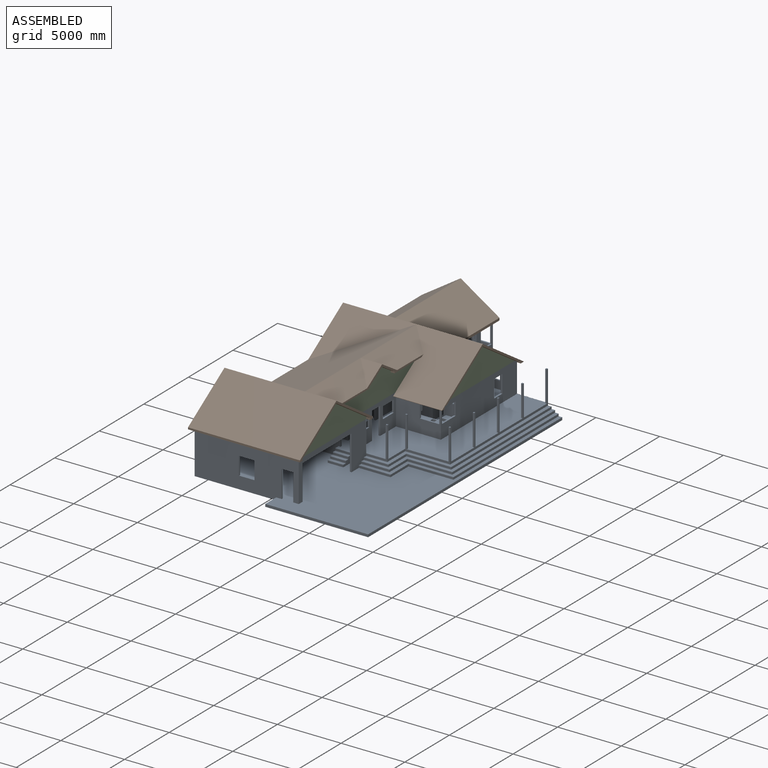
[diagram: assembled view]
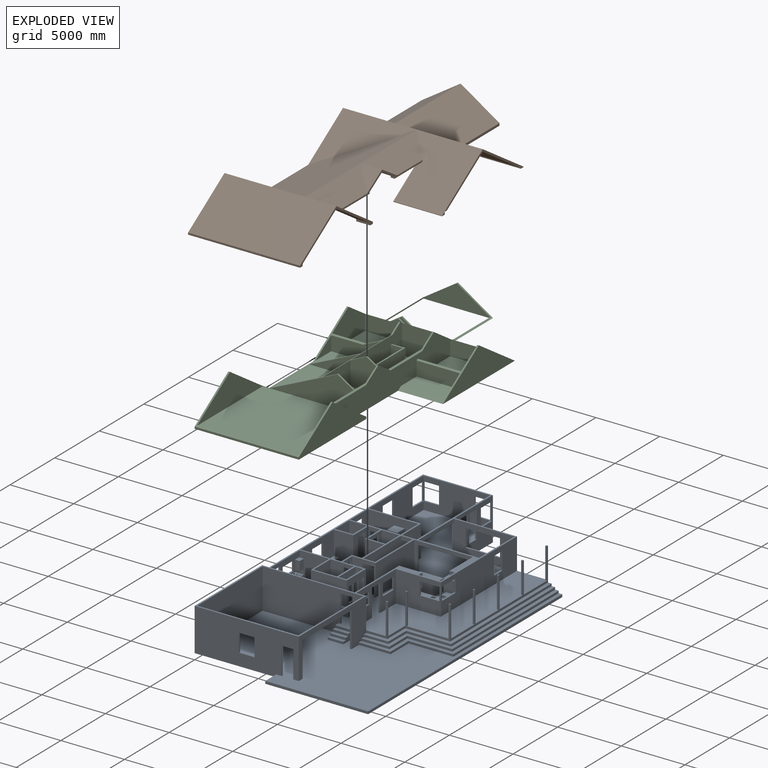
[diagram: exploded view]
GUIDED TOUR — MATED ASSEMBLY (Onshape document f71e9f13c0f35e55d997de1e, AutoMate assembly f71e9f13c0f35e55d997de1e_c3f4e6543fdfa51a9d2d7224_18e60f7df534cf2a55e49c2d_default)

This assembly has 3 components, labeled P0..P2 below (a component is one placed occurrence of a part; the same part can appear more than once), held together by 2 mates. A mate is a constraint between two components; its type names the relative motion it leaves free:
  FASTENED — locks the two components together rigidly (no relative motion).
Axis/direction vectors are unit vectors and 'through' points are millimeter coordinates, both in the assembly's world frame.

MATES
  1. FASTENED "Fastened 1": P1 <-> P2, direction (0.000, 0.000, 1.000) through (10922.00, 16281.40, 5984.88) mm
  2. FASTENED "Fastened-Floor 2": P2 <-> P0, direction (0.000, 0.000, 1.000) through (0.00, 0.00, 3352.80) mm

ASSEMBLY ORDER
  1. P2 — the base component [order heuristic]
  2. P1 — core [order heuristic]
  3. P0 [order verified]
Order-tag legend:
  [order verified] — this step's position reverses a verified removal order: the component was checked to insert without passing through the ones already placed.
  [order heuristic] — the first 2 components form the assembly's core: parts whose collision-free extraction could not be verified, listed in mate-graph order.

Of the 3 components, 1 carries the full construction recipe — the FeatureScript program that regenerates the part's solid from scratch; the rest are supplied as boundary geometry only.
Each toured component is shown spotlighted twice — in the assembled view, then in the exploded view, where a leader line traces a displaced component back to its assembled socket (saturated green if recipe-attached, orange if geometry-only; every other component desaturated gray) — followed by its recipe or geometry summary and the mates that hold it.
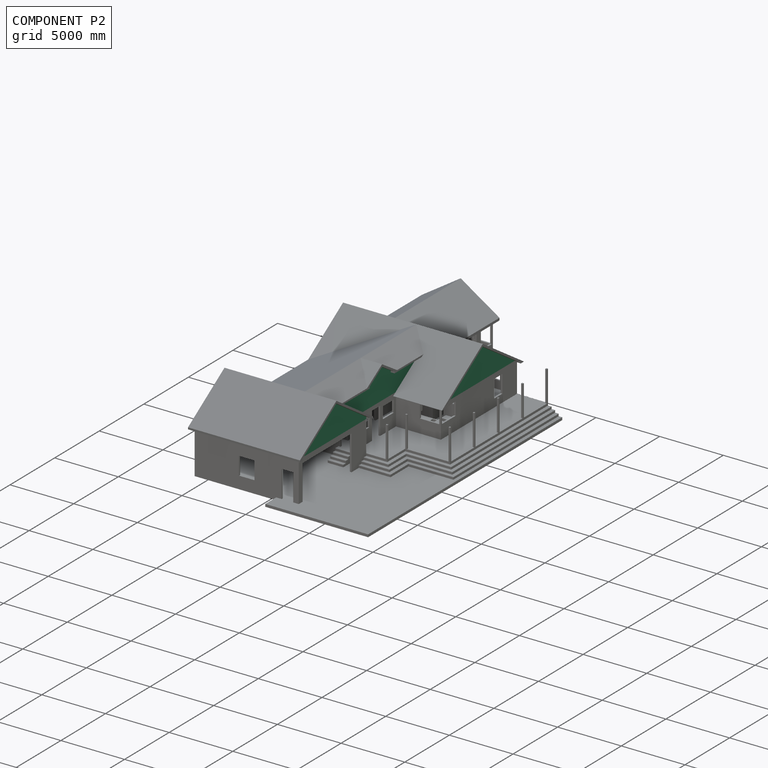
[diagram: component P2 — assembled]
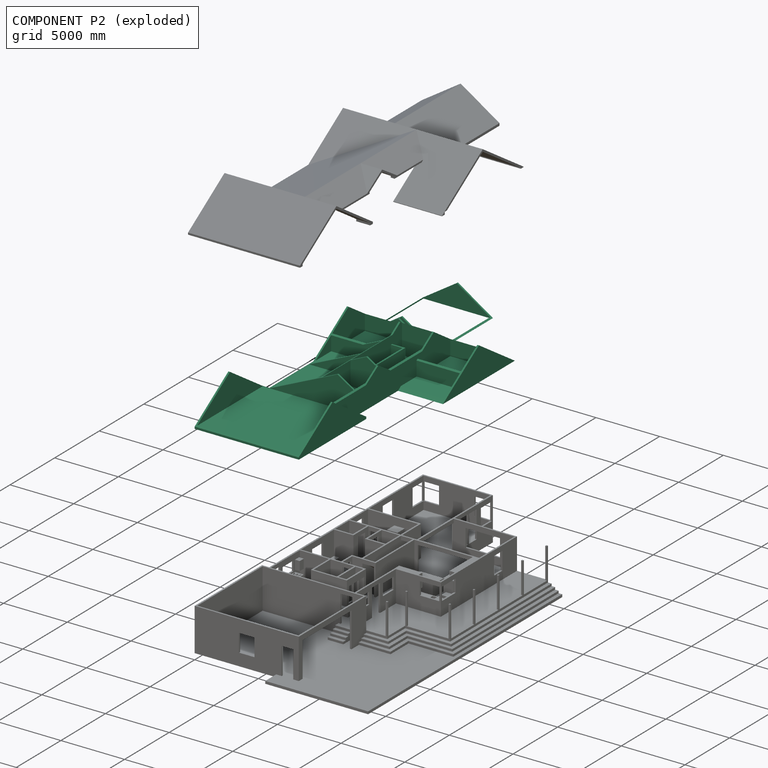
[diagram: component P2 — exploded]
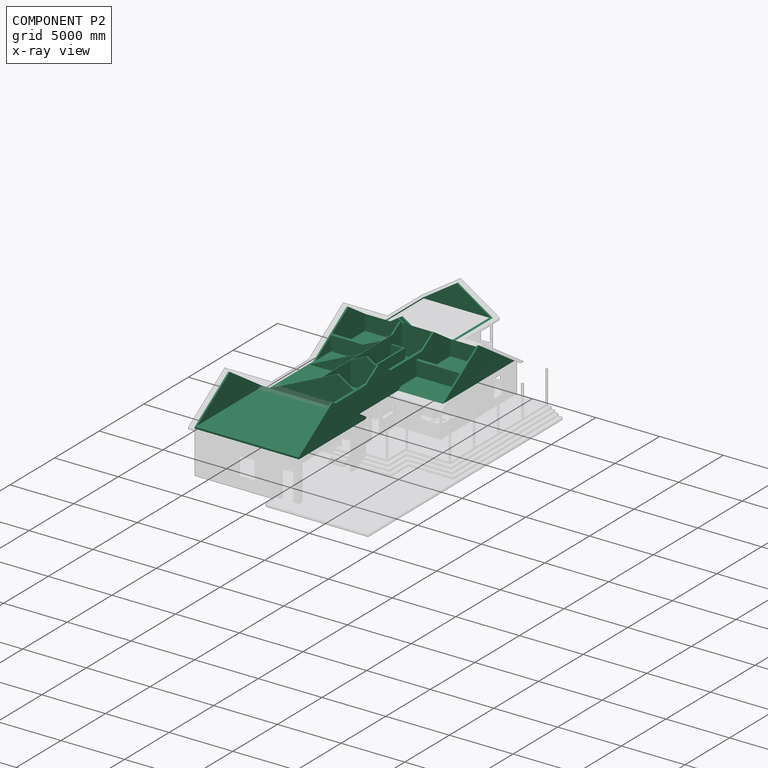
[diagram: component P2 — x-ray view]
COMPONENT P2 — recipe-attached (CADFS 00163515, mesh-verified: the recipe's output STEP matches this component's geometry to below the mesh-comparison resolution (tessellation chordal tolerance ~40.9 mm)).
Held by: FASTENED mate "Fastened 1" to P1; FASTENED mate "Fastened-Floor 2" to P0.
Construction recipe (FeatureScript — the CAD program that rebuilds this solid; sketch coordinates are in the units given by the * unit suffixes, e.g. mm):

FeatureScript 2581;
import(path : "onshape/std/geometry.fs", version : "2581.0");
import(path : "onshape/std/common.fs", version : "2581.0");
const mm = millimeter;
const VERTEX = EntityType.VERTEX;
const EDGE = EntityType.EDGE;
const FACE = EntityType.FACE;
const BODY = EntityType.BODY;
function v(x, y){return vector(x, y);}
function OD(order){return orderDisambiguation(order);}
function OSD(set){return originalSetDisambiguation(set);}
function TD(topology){return topologyDisambiguation(topology);}
function TDD(query){return trueDependencyDisambiguation(query);}
function sQuery(a, b, c) {return sketchEntityQuery(a, b, c);}

annotation { "Feature Type Name" : "Feature", "Feature Type Description" : "" }
export const myFeature = defineFeature(function(context is Context, id is Id, definition is map)
    precondition{}
    {
        {
            var Q0;
            Q0=qCreatedBy(makeId("Top.planeOp"),FACE);
            var sketch = newSketch(context, id + "F0", { "sketchPlane" : qUnion([Q0])});
            skLineSegment(sketch, "E0", {"start": v(0, 0) * mm, "end": v(8178.8, 0) * mm});
            skLineSegment(sketch, "E1", {"start": v(0, 0) * mm, "end": v(0, 7569.2) * mm});
            skLineSegment(sketch, "E2", {"start": v(0, 7569.2) * mm, "end": v(558.8, 7569.2) * mm});
            skLineSegment(sketch, "E3", {"start": v(558.8, 7569.2) * mm, "end": v(558.8, 24815.8) * mm});
            skLineSegment(sketch, "E4", {"start": v(558.8, 24815.8) * mm, "end": v(6045.2, 24815.8) * mm});
            skLineSegment(sketch, "E5", {"start": v(6045.2, 24815.8) * mm, "end": v(6045.2, 20548.6) * mm});
            skLineSegment(sketch, "E6", {"start": v(6045.2, 20548.6) * mm, "end": v(10922, 20548.6) * mm});
            skLineSegment(sketch, "E7", {"start": v(10922, 20548.6) * mm, "end": v(10922, 12014.2) * mm});
            skLineSegment(sketch, "E8", {"start": v(10922, 12014.2) * mm, "end": v(7391.4, 12014.2) * mm});
            skLineSegment(sketch, "E9", {"start": v(7391.4, 12014.2) * mm, "end": v(7391.4, 7569.2) * mm});
            skLineSegment(sketch, "E10", {"start": v(7391.4, 7569.2) * mm, "end": v(8178.8, 7569.2) * mm});
            skLineSegment(sketch, "E11", {"start": v(8178.8, 7569.2) * mm, "end": v(8178.8, 0) * mm});
            skSolve(sketch);
        }
        {
            var Q0;
            Q0 = qSketchRegion(id + "F0", true);
            extrude(context, id + "F1", {"entities" : qUnion([Q0]), "depth" : 2632.07 * mm});
        }
        {
            var Q0;
            Q0=makeQuery(id+"F1.opExtrude","SWEPT_FACE",FACE,{"disambiguationData":[OSD([sQuery(id+"F0.wireOp",EDGE,"E7")])]});
            var sketch = newSketch(context, id + "F2", { "sketchPlane" : qUnion([Q0])});
            skLineSegment(sketch, "E12", {"start": v(16281.4, 2632.08) * mm, "end": v(16281.4, 219.08) * mm, "construction": true});
            skLineSegment(sketch, "E13", {"start": v(14452.6, 219.08) * mm, "end": v(18110.2, 219.08) * mm, "construction": true});
            skLineSegment(sketch, "E14", {"start": v(14452.6, 219.08) * mm, "end": v(14452.6, 1438.28) * mm, "construction": true});
            skLineSegment(sketch, "E15", {"start": v(16281.4, 2632.08) * mm, "end": v(12249.29, 0) * mm});
            skLineSegment(sketch, "E16", {"start": v(12249.29, 0) * mm, "end": v(12014.2, 0) * mm});
            skLineSegment(sketch, "E17", {"start": v(12014.2, 0) * mm, "end": v(12014.2, 2632.08) * mm});
            skLineSegment(sketch, "E18", {"start": v(12014.2, 2632.08) * mm, "end": v(16281.4, 2632.08) * mm});
            skLineSegment(sketch, "E19.MirrorCS", {"start": v(16281.4, 2632.08) * mm, "end": v(20313.51, 0) * mm});
            skLineSegment(sketch, "E20.MirrorCS", {"start": v(20313.51, 0) * mm, "end": v(20548.6, 0) * mm});
            skLineSegment(sketch, "E21.MirrorCS", {"start": v(20548.6, 0) * mm, "end": v(20548.6, 2632.08) * mm});
            skLineSegment(sketch, "E22.MirrorCS", {"start": v(20548.6, 2632.08) * mm, "end": v(16281.4, 2632.08) * mm});
            skLineSegment(sketch, "E23", {"start": v(3784.6, 2632.08) * mm, "end": v(3784.6, 219.08) * mm, "construction": true});
            skLineSegment(sketch, "E24", {"start": v(1955.8, 219.08) * mm, "end": v(5613.4, 219.08) * mm, "construction": true});
            skLineSegment(sketch, "E25", {"start": v(1955.8, 219.08) * mm, "end": v(1955.8, 1438.28) * mm, "construction": true});
            skLineSegment(sketch, "E26", {"start": v(3784.6, 2632.08) * mm, "end": v(0, 161.57) * mm});
            skLineSegment(sketch, "E27", {"start": v(0, 161.57) * mm, "end": v(0, 2632.08) * mm});
            skLineSegment(sketch, "E28", {"start": v(0, 2632.08) * mm, "end": v(3784.6, 2632.08) * mm});
            skLineSegment(sketch, "E29.MirrorCS", {"start": v(3784.6, 2632.08) * mm, "end": v(7569.2, 161.57) * mm});
            skLineSegment(sketch, "E30.MirrorCS", {"start": v(7569.2, 161.57) * mm, "end": v(7569.2, 2632.08) * mm});
            skLineSegment(sketch, "E31.MirrorCS", {"start": v(7569.2, 2632.08) * mm, "end": v(3784.6, 2632.08) * mm});
            skSolve(sketch);
        }
        {
            var Q0;
            Q0 = qSketchRegion(id + "F2", true);
            var Q1;
            Q1=makeQuery(id+"F1.opExtrude","SWEPT_FACE",FACE,{"disambiguationData":[OSD([sQuery(id+"F0.wireOp",EDGE,"E1")])]});
            extrude(context, id + "F3", {"entities" : qUnion([Q0]), "operationType" : NewBodyOperationType.REMOVE, "endBound" : BoundingType.UP_TO_SURFACE, "oppositeDirection" : true, "endBoundEntityFace" : qUnion([Q1]), "depth" : 25.4 * mm});
        }
        {
            var Q0;
            Q0=makeQuery(id+"F3.boolean.opBoolean","COPY",FACE,{"derivedFrom":makeQuery(id+"F3.opExtrude","SWEPT_FACE",FACE,{"disambiguationData":[OSD([sQuery(id+"F2.wireOp",EDGE,"E30.MirrorCS")])]})});
            var sketch = newSketch(context, id + "F4", { "sketchPlane" : qUnion([Q0])});
            skLineSegment(sketch, "E32", {"start": v(6010.27, 2632.07) * mm, "end": v(6010.27, 219.07) * mm, "construction": true});
            skLineSegment(sketch, "E33", {"start": v(4756.15, 219.07) * mm, "end": v(7264.4, 219.07) * mm, "construction": true});
            skLineSegment(sketch, "E34", {"start": v(4756.15, 219.07) * mm, "end": v(4756.15, 1844.67) * mm, "construction": true});
            skLineSegment(sketch, "E35", {"start": v(6010.27, 2632.07) * mm, "end": v(558.8, 161.57) * mm});
            skLineSegment(sketch, "E36", {"start": v(558.8, 161.57) * mm, "end": v(558.8, 2632.07) * mm});
            skLineSegment(sketch, "E37", {"start": v(558.8, 2632.07) * mm, "end": v(6010.27, 2632.07) * mm});
            skLineSegment(sketch, "E38.MirrorCS", {"start": v(7264.4, 219.07) * mm, "end": v(7264.4, 1844.67) * mm, "construction": true});
            skLineSegment(sketch, "E39", {"start": v(6010.27, 2632.07) * mm, "end": v(7391.4, 1764.94) * mm});
            skLineSegment(sketch, "E40", {"start": v(7391.4, 1764.94) * mm, "end": v(7391.4, 2632.07) * mm});
            skLineSegment(sketch, "E41", {"start": v(7391.4, 2632.07) * mm, "end": v(6010.27, 2632.07) * mm});
            skSolve(sketch);
        }
        {
            var Q0;
            Q0 = qSketchRegion(id + "F4", true);
            extrude(context, id + "F5", {"entities" : qUnion([Q0]), "operationType" : NewBodyOperationType.REMOVE, "endBound" : BoundingType.UP_TO_NEXT, "oppositeDirection" : true, "depth" : 25.4 * mm});
        }
        {
            var Q0;
            Q0=makeQuery(id+"F3.boolean.opBoolean","COPY",FACE,{"derivedFrom":makeQuery(id+"F3.opExtrude","SWEPT_FACE",FACE,{"disambiguationData":[OSD([sQuery(id+"F2.wireOp",EDGE,"E30.MirrorCS")])]})});
            var sketch = newSketch(context, id + "F6", { "sketchPlane" : qUnion([Q0])});
            skLineSegment(sketch, "E42", {"start": v(558.8, 161.57) * mm, "end": v(6010.27, 2632.08) * mm});
            skLineSegment(sketch, "E43", {"start": v(6010.27, 2632.08) * mm, "end": v(7391.4, 1764.94) * mm});
            skLineSegment(sketch, "E44", {"start": v(7391.4, 1764.94) * mm, "end": v(7391.4, 161.57) * mm});
            skLineSegment(sketch, "E45", {"start": v(7391.4, 161.57) * mm, "end": v(558.8, 161.57) * mm});
            skSolve(sketch);
        }
        {
            var Q0;
            Q0 = qSketchRegion(id + "F6", true);
            extrude(context, id + "F7", {"entities" : qUnion([Q0]), "operationType" : NewBodyOperationType.ADD, "endBound" : BoundingType.UP_TO_NEXT, "depth" : 25.4 * mm});
        }
        {
            var Q0;
            Q0=makeQuery(id+"F3.boolean.opBoolean","COPY",FACE,{"derivedFrom":makeQuery(id+"F3.opExtrude","SWEPT_FACE",FACE,{"disambiguationData":[OSD([sQuery(id+"F2.wireOp",EDGE,"E17")])]})});
            var sketch = newSketch(context, id + "F8", { "sketchPlane" : qUnion([Q0])});
            skLineSegment(sketch, "E46", {"start": v(-6010.27, 2632.08) * mm, "end": v(-7391.4, 1764.94) * mm});
            skLineSegment(sketch, "E47", {"start": v(-7391.4, 1764.94) * mm, "end": v(-7391.4, 0) * mm});
            skLineSegment(sketch, "E48", {"start": v(-7391.4, 0) * mm, "end": v(-558.8, 0) * mm});
            skLineSegment(sketch, "E49", {"start": v(-558.8, 161.57) * mm, "end": v(-6010.27, 2632.08) * mm});
            skLineSegment(sketch, "E50", {"start": v(-558.8, 161.57) * mm, "end": v(-558.8, 0) * mm});
            skSolve(sketch);
        }
        {
            var Q0;
            Q0 = qSketchRegion(id + "F8", true);
            extrude(context, id + "F9", {"entities" : qUnion([Q0]), "operationType" : NewBodyOperationType.ADD, "endBound" : BoundingType.UP_TO_NEXT, "depth" : 25.4 * mm});
        }
        {
            var Q0;
            Q0=makeQuery(id+"F1.opExtrude","SWEPT_FACE",FACE,{"disambiguationData":[OSD([sQuery(id+"F0.wireOp",EDGE,"E4")])]});
            var sketch = newSketch(context, id + "F10", { "sketchPlane" : qUnion([Q0])});
            skLineSegment(sketch, "E51", {"start": v(-3302, 2632.08) * mm, "end": v(-3302, 0) * mm, "construction": true});
            skPoint(sketch, "E52", {"position": v(-3302, 219.07) * mm});
            skPoint(sketch, "E53", {"position": v(-3302, 1793.88) * mm});
            skLineSegment(sketch, "E54", {"start": v(-5130.8, 219.07) * mm, "end": v(-1473.2, 219.07) * mm, "construction": true});
            skLineSegment(sketch, "E55", {"start": v(-5130.8, 219.08) * mm, "end": v(-5130.8, 1438.27) * mm, "construction": true});
            skLineSegment(sketch, "E56", {"start": v(-5130.8, 1438.27) * mm, "end": v(-3302, 2632.08) * mm, "construction": true});
            skLineSegment(sketch, "E57", {"start": v(-3302, 1793.88) * mm, "end": v(-6045.2, 3.17) * mm});
            skLineSegment(sketch, "E58", {"start": v(-6045.2, 3.17) * mm, "end": v(-6045.2, 2632.08) * mm});
            skLineSegment(sketch, "E59", {"start": v(-6045.2, 2632.08) * mm, "end": v(-3302, 2632.08) * mm});
            skLineSegment(sketch, "E60.MirrorCS", {"start": v(-3302, 1793.88) * mm, "end": v(-558.8, 3.17) * mm});
            skLineSegment(sketch, "E61.MirrorCS", {"start": v(-558.8, 3.17) * mm, "end": v(-558.8, 2632.08) * mm});
            skLineSegment(sketch, "E62.MirrorCS", {"start": v(-558.8, 2632.08) * mm, "end": v(-3302, 2632.08) * mm});
            skSolve(sketch);
        }
        {
            var Q0;
            Q0 = qSketchRegion(id + "F10", true);
            extrude(context, id + "F11", {"entities" : qUnion([Q0]), "operationType" : NewBodyOperationType.REMOVE, "endBound" : BoundingType.UP_TO_NEXT, "oppositeDirection" : true, "depth" : 25.4 * mm});
        }
        {
            var Q0;
            Q0=makeQuery(id+"F3.boolean.opBoolean","COPY",FACE,{"derivedFrom":makeQuery(id+"F3.opExtrude","SWEPT_FACE",FACE,{"disambiguationData":[OSD([sQuery(id+"F2.wireOp",EDGE,"E21.MirrorCS")])]})});
            var sketch = newSketch(context, id + "F12", { "sketchPlane" : qUnion([Q0])});
            skLineSegment(sketch, "E63", {"start": v(3302, 1793.88) * mm, "end": v(558.8, 3.17) * mm});
            skLineSegment(sketch, "E64", {"start": v(558.8, 3.17) * mm, "end": v(558.8, 0) * mm});
            skLineSegment(sketch, "E65", {"start": v(558.8, 0) * mm, "end": v(6045.2, 0) * mm});
            skLineSegment(sketch, "E66", {"start": v(6045.2, 0) * mm, "end": v(6045.2, 3.17) * mm});
            skLineSegment(sketch, "E67", {"start": v(6045.2, 3.17) * mm, "end": v(3302, 1793.88) * mm});
            skSolve(sketch);
        }
        {
            var Q0;
            Q0 = qSketchRegion(id + "F12", true);
            extrude(context, id + "F13", {"entities" : qUnion([Q0]), "operationType" : NewBodyOperationType.ADD, "endBound" : BoundingType.UP_TO_NEXT, "depth" : 25.4 * mm});
        }
        {
            var Q0;
            Q0=makeQuery(id+"F9.boolean.opBoolean","MERGE",FACE,{"derivedFrom":[makeQuery(id+"F7.boolean.opBoolean","MERGE",FACE,{"derivedFrom":[makeQuery(id+"F1.opExtrude","SWEPT_FACE",FACE,{"disambiguationData":[OSD([sQuery(id+"F0.wireOp",EDGE,"E9")])]}),makeQuery(id+"F7.opExtrude","SWEPT_FACE",FACE,{"disambiguationData":[OSD([sQuery(id+"F6.wireOp",EDGE,"E44")])]})]}),makeQuery(id+"F9.opExtrude","SWEPT_FACE",FACE,{"disambiguationData":[OSD([sQuery(id+"F8.wireOp",EDGE,"E47")])]})]});
            var sketch = newSketch(context, id + "F14", { "sketchPlane" : qUnion([Q0])});
            skLineSegment(sketch, "E68", {"start": v(3784.6, 2632.08) * mm, "end": v(16281.4, 2632.08) * mm, "construction": true});
            skLineSegment(sketch, "E69", {"start": v(10033, 2632.08) * mm, "end": v(10033, 0) * mm, "construction": true});
            skLineSegment(sketch, "E70", {"start": v(8778.88, 219.08) * mm, "end": v(11287.13, 219.08) * mm, "construction": true});
            skPoint(sketch, "E71", {"position": v(10033, 219.08) * mm});
            skLineSegment(sketch, "E72", {"start": v(8778.88, 219.08) * mm, "end": v(8778.88, 1844.68) * mm, "construction": true});
            skLineSegment(sketch, "E73", {"start": v(10033, 2632.07) * mm, "end": v(8651.87, 1764.94) * mm});
            skLineSegment(sketch, "E74.MirrorCS", {"start": v(10033, 2632.07) * mm, "end": v(11414.13, 1764.94) * mm});
            skLineSegment(sketch, "E75", {"start": v(8651.87, 1764.94) * mm, "end": v(11414.13, 1764.94) * mm});
            skSolve(sketch);
        }
        {
            var Q0;
            Q0 = qSketchRegion(id + "F14", true);
            extrude(context, id + "F15", {"entities" : qUnion([Q0]), "operationType" : NewBodyOperationType.ADD, "endBound" : BoundingType.UP_TO_NEXT, "oppositeDirection" : true, "depth" : 25.4 * mm});
        }
        {
            var Q0;
            Q0=qCreatedBy(makeId("Top.planeOp"),FACE);
            cPlane(context, id + "F16", {"entities" : qUnion([Q0]), "cplaneType" : CPlaneType.OFFSET, "offset" : 2632.07 * mm, "width" : 152.4 * mm, "height" : 152.4 * mm});
        }
        {
            var Q0;
            Q0=qCreatedBy(id+"F16.planeOp",FACE);
            var sketch = newSketch(context, id + "F17", { "sketchPlane" : qUnion([Q0])});
            skLineSegment(sketch, "E76.bottom", {"start": v(685.8, 24688.8) * mm, "end": v(5918.2, 24688.8) * mm});
            skLineSegment(sketch, "E76.top", {"start": v(685.8, 18592.8) * mm, "end": v(5918.2, 18592.8) * mm});
            skLineSegment(sketch, "E76.left", {"start": v(685.8, 24688.8) * mm, "end": v(685.8, 18592.8) * mm});
            skLineSegment(sketch, "E76.right", {"start": v(5918.2, 24688.8) * mm, "end": v(5918.2, 18592.8) * mm});
            skSolve(sketch);
        }
        {
            var Q0;
            Q0 = qSketchRegion(id + "F17", true);
            extrude(context, id + "F18", {"entities" : qUnion([Q0]), "operationType" : NewBodyOperationType.REMOVE, "endBound" : BoundingType.THROUGH_ALL, "oppositeDirection" : true, "depth" : 25.4 * mm});
        }
        {
            var Q0;
            Q0=qCreatedBy(id+"F16.planeOp",FACE);
            var sketch = newSketch(context, id + "F19", { "sketchPlane" : qUnion([Q0])});
            skLineSegment(sketch, "E77.bottom", {"start": v(7391.4, 18110.2) * mm, "end": v(10795, 18110.2) * mm});
            skLineSegment(sketch, "E77.top", {"start": v(7391.4, 14452.6) * mm, "end": v(10795, 14452.6) * mm});
            skLineSegment(sketch, "E77.left", {"start": v(7391.4, 18110.2) * mm, "end": v(7391.4, 14452.6) * mm});
            skLineSegment(sketch, "E77.right", {"start": v(10795, 18110.2) * mm, "end": v(10795, 14452.6) * mm});
            skLineSegment(sketch, "E78", {"start": v(10922, 16281.4) * mm, "end": v(558.8, 16281.4) * mm, "construction": true});
            skPoint(sketch, "E79", {"position": v(10795, 16281.4) * mm});
            skLineSegment(sketch, "E80.bottom", {"start": v(685.8, 18110.2) * mm, "end": v(4629.15, 18110.2) * mm});
            skLineSegment(sketch, "E80.top", {"start": v(685.8, 14452.6) * mm, "end": v(4629.15, 14452.6) * mm});
            skLineSegment(sketch, "E80.left", {"start": v(685.8, 18110.2) * mm, "end": v(685.8, 14452.6) * mm});
            skLineSegment(sketch, "E80.right", {"start": v(4629.15, 18110.2) * mm, "end": v(4629.15, 14452.6) * mm});
            skLineSegment(sketch, "E81.bottom", {"start": v(4756.15, 18110.2) * mm, "end": v(5946.77, 18110.2) * mm});
            skLineSegment(sketch, "E81.top", {"start": v(4756.15, 16586.2) * mm, "end": v(5946.77, 16586.2) * mm});
            skLineSegment(sketch, "E81.left", {"start": v(4756.15, 18110.2) * mm, "end": v(4756.15, 16586.2) * mm});
            skLineSegment(sketch, "E81.right", {"start": v(5946.77, 18110.2) * mm, "end": v(5946.77, 16586.2) * mm});
            skLineSegment(sketch, "E82.bottom", {"start": v(7264.4, 18110.2) * mm, "end": v(6073.77, 18110.2) * mm});
            skLineSegment(sketch, "E82.top", {"start": v(7264.4, 16586.2) * mm, "end": v(6073.77, 16586.2) * mm});
            skLineSegment(sketch, "E82.left", {"start": v(7264.4, 18110.2) * mm, "end": v(7264.4, 16586.2) * mm});
            skLineSegment(sketch, "E82.right", {"start": v(6073.77, 18110.2) * mm, "end": v(6073.77, 16586.2) * mm});
            skLineSegment(sketch, "E83.bottom", {"start": v(10795, 14325.6) * mm, "end": v(7391.4, 14325.6) * mm});
            skLineSegment(sketch, "E83.top", {"start": v(10795, 12014.2) * mm, "end": v(7391.4, 12014.2) * mm});
            skLineSegment(sketch, "E83.left", {"start": v(10795, 14325.6) * mm, "end": v(10795, 12014.2) * mm});
            skLineSegment(sketch, "E83.right", {"start": v(7391.4, 14325.6) * mm, "end": v(7391.4, 12014.2) * mm});
            skLineSegment(sketch, "E84.bottom", {"start": v(10795, 18237.2) * mm, "end": v(6045.2, 18237.2) * mm});
            skLineSegment(sketch, "E84.top", {"start": v(10795, 20548.6) * mm, "end": v(6045.2, 20548.6) * mm});
            skLineSegment(sketch, "E84.left", {"start": v(10795, 18237.2) * mm, "end": v(10795, 20548.6) * mm});
            skLineSegment(sketch, "E84.right", {"start": v(6045.2, 18237.2) * mm, "end": v(6045.2, 20548.6) * mm});
            skLineSegment(sketch, "E85.bottom", {"start": v(685.8, 18237.2) * mm, "end": v(5918.2, 18237.2) * mm});
            skLineSegment(sketch, "E85.top", {"start": v(685.8, 18465.8) * mm, "end": v(5918.2, 18465.8) * mm});
            skLineSegment(sketch, "E85.left", {"start": v(685.8, 18237.2) * mm, "end": v(685.8, 18465.8) * mm});
            skLineSegment(sketch, "E85.right", {"start": v(5918.2, 18237.2) * mm, "end": v(5918.2, 18465.8) * mm});
            skLineSegment(sketch, "E86.bottom", {"start": v(685.8, 14325.6) * mm, "end": v(4629.15, 14325.6) * mm});
            skLineSegment(sketch, "E86.top", {"start": v(685.8, 12014.2) * mm, "end": v(4629.15, 12014.2) * mm});
            skLineSegment(sketch, "E86.left", {"start": v(685.8, 14325.6) * mm, "end": v(685.8, 12014.2) * mm});
            skLineSegment(sketch, "E86.right", {"start": v(4629.15, 14325.6) * mm, "end": v(4629.15, 12014.2) * mm});
            skLineSegment(sketch, "E87.bottom", {"start": v(127, 7442.2) * mm, "end": v(8051.8, 7442.2) * mm});
            skLineSegment(sketch, "E87.top", {"start": v(127, 127) * mm, "end": v(8051.8, 127) * mm});
            skLineSegment(sketch, "E87.left", {"start": v(127, 7442.2) * mm, "end": v(127, 127) * mm});
            skLineSegment(sketch, "E87.right", {"start": v(8051.8, 7442.2) * mm, "end": v(8051.8, 127) * mm});
            skLineSegment(sketch, "E88.bottom", {"start": v(685.8, 11887.2) * mm, "end": v(4629.15, 11887.2) * mm});
            skLineSegment(sketch, "E88.top", {"start": v(685.8, 7569.2) * mm, "end": v(4629.15, 7569.2) * mm});
            skLineSegment(sketch, "E88.left", {"start": v(685.8, 11887.2) * mm, "end": v(685.8, 7569.2) * mm});
            skLineSegment(sketch, "E88.right", {"start": v(4629.15, 11887.2) * mm, "end": v(4629.15, 7569.2) * mm});
            skLineSegment(sketch, "E89.bottom", {"start": v(4756.15, 16459.2) * mm, "end": v(7264.4, 16459.2) * mm});
            skLineSegment(sketch, "E89.top", {"start": v(4756.15, 10820.4) * mm, "end": v(7264.4, 10820.4) * mm});
            skLineSegment(sketch, "E89.left", {"start": v(4756.15, 16459.2) * mm, "end": v(4756.15, 10820.4) * mm});
            skLineSegment(sketch, "E89.right", {"start": v(7264.4, 16459.2) * mm, "end": v(7264.4, 10820.4) * mm});
            skLineSegment(sketch, "E90.bottom", {"start": v(4756.15, 10693.4) * mm, "end": v(7264.4, 10693.4) * mm});
            skLineSegment(sketch, "E90.top", {"start": v(4756.15, 7569.2) * mm, "end": v(7264.4, 7569.2) * mm});
            skLineSegment(sketch, "E90.left", {"start": v(4756.15, 10693.4) * mm, "end": v(4756.15, 7569.2) * mm});
            skLineSegment(sketch, "E90.right", {"start": v(7264.4, 10693.4) * mm, "end": v(7264.4, 7569.2) * mm});
            skSolve(sketch);
        }
        {
            var Q0;
            Q0 = qSketchRegion(id + "F19", true);
            extrude(context, id + "F20", {"entities" : qUnion([Q0]), "operationType" : NewBodyOperationType.REMOVE, "oppositeDirection" : true, "depth" : 2413 * mm});
        }
        {
            var Q0;
            Q0=makeQuery(id+"F20.boolean.opBoolean","COPY",FACE,{"derivedFrom":makeQuery(id+"F20.opExtrude","CAP_FACE",FACE,{"disambiguationData":[OSD([sQuery(id+"F19.wireOp",EDGE,"E89.bottom"),sQuery(id+"F19.wireOp",EDGE,"E89.top"),sQuery(id+"F19.wireOp",EDGE,"E89.left"),sQuery(id+"F19.wireOp",EDGE,"E89.right")])],"isStart":false})});
            var sketch = newSketch(context, id + "F21", { "sketchPlane" : qUnion([Q0])});
            skLineSegment(sketch, "E91.bottom", {"start": v(4756.15, 15214.6) * mm, "end": v(5670.55, 15214.6) * mm});
            skLineSegment(sketch, "E91.top", {"start": v(4756.15, 11734.8) * mm, "end": v(5670.55, 11734.8) * mm});
            skLineSegment(sketch, "E91.left", {"start": v(4756.15, 15214.6) * mm, "end": v(4756.15, 11734.8) * mm});
            skLineSegment(sketch, "E91.right", {"start": v(5670.55, 15214.6) * mm, "end": v(5670.55, 11734.8) * mm});
            skSolve(sketch);
        }
        {
            var Q0;
            Q0 = qSketchRegion(id + "F21", true);
            extrude(context, id + "F22", {"entities" : qUnion([Q0]), "operationType" : NewBodyOperationType.REMOVE, "endBound" : BoundingType.THROUGH_ALL, "oppositeDirection" : true, "depth" : 25.4 * mm});
        }
        {
            var Q0;
            Q0=makeQuery(id+"F22.boolean.opBoolean","MERGE",FACE,{"derivedFrom":[makeQuery(id+"F20.boolean.opBoolean","COPY",FACE,{"derivedFrom":makeQuery(id+"F20.opExtrude","SWEPT_FACE",FACE,{"disambiguationData":[OSD([sQuery(id+"F19.wireOp",EDGE,"E89.left")])]})}),makeQuery(id+"F22.opExtrude","SWEPT_FACE",FACE,{"disambiguationData":[OSD([sQuery(id+"F21.wireOp",EDGE,"E91.left")])]})]});
            var sketch = newSketch(context, id + "F23", { "sketchPlane" : qUnion([Q0])});
            skLineSegment(sketch, "E92.bottom", {"start": v(11734.8, 28.57) * mm, "end": v(12014.2, 28.57) * mm});
            skLineSegment(sketch, "E92.top", {"start": v(11734.8, 0) * mm, "end": v(12014.2, 0) * mm});
            skLineSegment(sketch, "E92.left", {"start": v(11734.8, 28.58) * mm, "end": v(11734.8, 0) * mm});
            skLineSegment(sketch, "E92.right", {"start": v(12014.2, 28.57) * mm, "end": v(12014.2, 0) * mm});
            skSolve(sketch);
        }
        {
            var Q0;
            Q0 = qSketchRegion(id + "F23", true);
            extrude(context, id + "F24", {"entities" : qUnion([Q0]), "operationType" : NewBodyOperationType.ADD, "endBound" : BoundingType.UP_TO_NEXT, "depth" : 25.4 * mm});
        }
        {
            var Q0;
            Q0=makeQuery(id+"F20.boolean.opBoolean","COPY",FACE,{"derivedFrom":makeQuery(id+"F20.opExtrude","CAP_FACE",FACE,{"disambiguationData":[OSD([sQuery(id+"F19.wireOp",EDGE,"E89.bottom"),sQuery(id+"F19.wireOp",EDGE,"E89.top"),sQuery(id+"F19.wireOp",EDGE,"E89.left"),sQuery(id+"F19.wireOp",EDGE,"E89.right")])],"isStart":false})});
            var sketch = newSketch(context, id + "F25", { "sketchPlane" : qUnion([Q0])});
            skLineSegment(sketch, "E93", {"start": v(4756.15, 15214.6) * mm, "end": v(4756.15, 15341.6) * mm});
            skLineSegment(sketch, "E94", {"start": v(4756.15, 15341.6) * mm, "end": v(5797.55, 15341.6) * mm});
            skLineSegment(sketch, "E95", {"start": v(5797.55, 15341.6) * mm, "end": v(5797.55, 11734.8) * mm});
            skLineSegment(sketch, "E96", {"start": v(5797.55, 11734.8) * mm, "end": v(5670.55, 11734.8) * mm});
            skLineSegment(sketch, "E97", {"start": v(5670.55, 11734.8) * mm, "end": v(5670.55, 15214.6) * mm});
            skLineSegment(sketch, "E98", {"start": v(5670.55, 15214.6) * mm, "end": v(4756.15, 15214.6) * mm});
            skSolve(sketch);
        }
        {
            var Q0;
            Q0 = qSketchRegion(id + "F25", true);
            extrude(context, id + "F26", {"entities" : qUnion([Q0]), "operationType" : NewBodyOperationType.ADD, "depth" : 1219.2 * mm});
        }
        {
            var Q0;
            Q0=makeQuery(id+"F20.boolean.opBoolean","COPY",FACE,{"derivedFrom":makeQuery(id+"F20.opExtrude","SWEPT_FACE",FACE,{"disambiguationData":[OSD([sQuery(id+"F19.wireOp",EDGE,"E87.bottom")])]})});
            var sketch = newSketch(context, id + "F27", { "sketchPlane" : qUnion([Q0])});
            skLineSegment(sketch, "E99", {"start": v(7391.4, 1764.94) * mm, "end": v(7264.4, 1844.67) * mm});
            skLineSegment(sketch, "E100", {"start": v(7264.4, 1844.67) * mm, "end": v(7264.4, 219.08) * mm});
            skLineSegment(sketch, "E101", {"start": v(7264.4, 219.08) * mm, "end": v(7391.4, 219.08) * mm});
            skLineSegment(sketch, "E102", {"start": v(7391.4, 219.08) * mm, "end": v(7391.4, 1764.94) * mm});
            skSolve(sketch);
        }
        {
            var Q0;
            Q0 = qSketchRegion(id + "F27", true);
            extrude(context, id + "F28", {"entities" : qUnion([Q0]), "operationType" : NewBodyOperationType.ADD, "depth" : 2438.4 * mm});
        }
    });
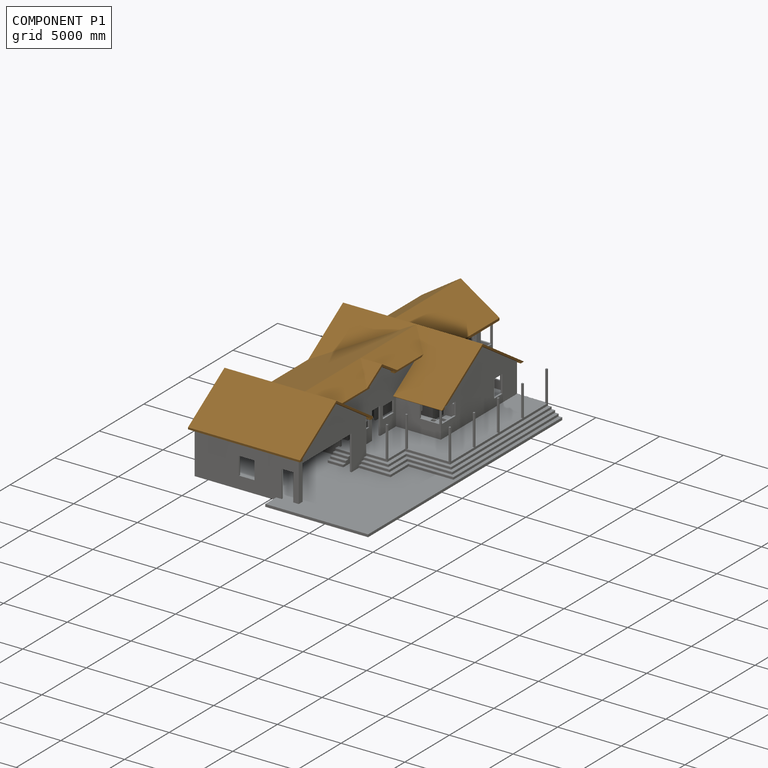
[diagram: component P1 — assembled]
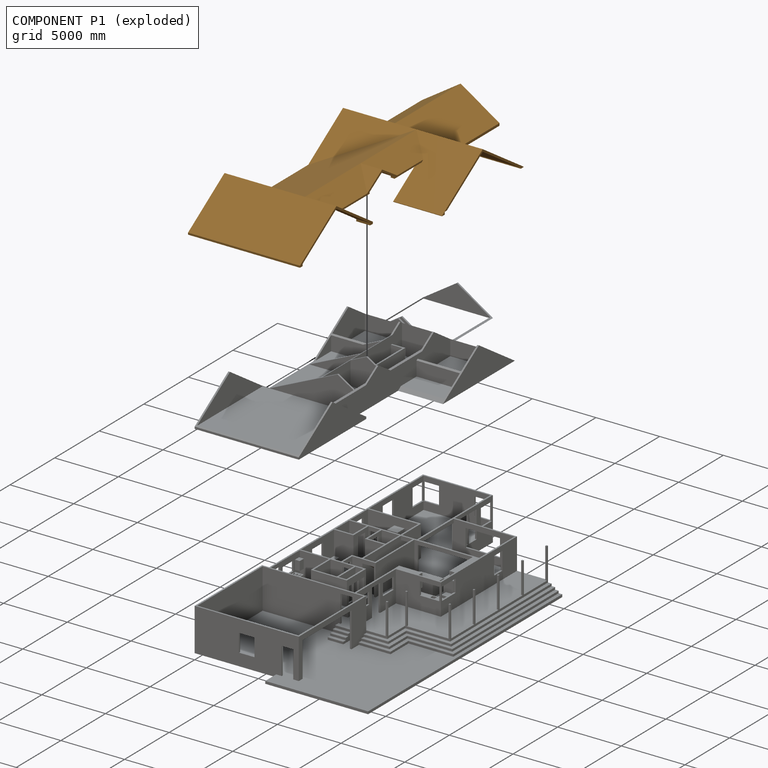
[diagram: component P1 — exploded]
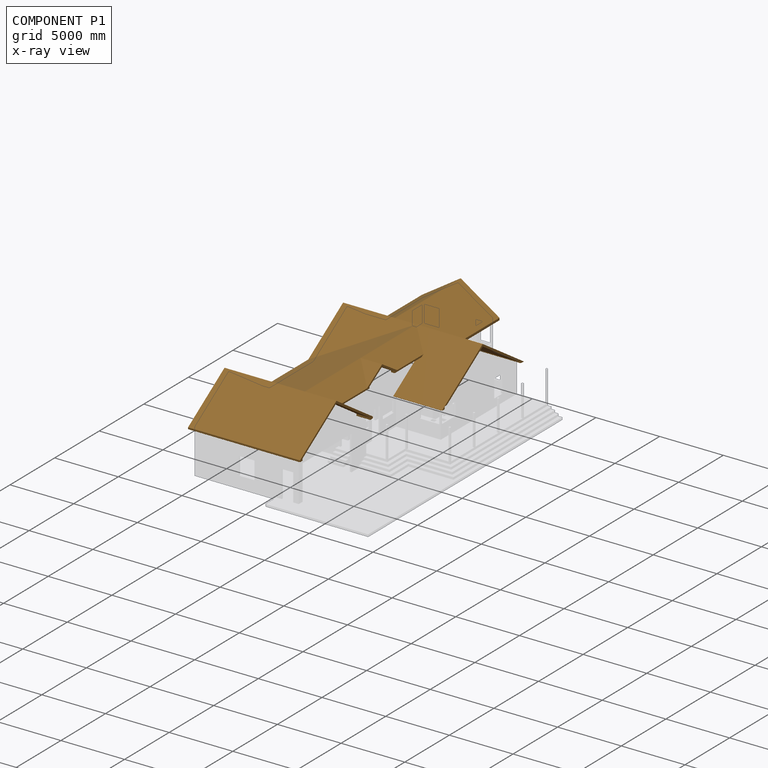
[diagram: component P1 — x-ray view]
COMPONENT P1 — geometry summary (no construction recipe available for this part):
  bounding box: 25425.4 x 11531.6 x 3017.3 mm
  B-rep topology: 1 solid, 73 faces, 404 edges
  volume: 41802203914 mm^3 (5% of its bounding box)
Held by: FASTENED mate "Fastened 1" to P2.
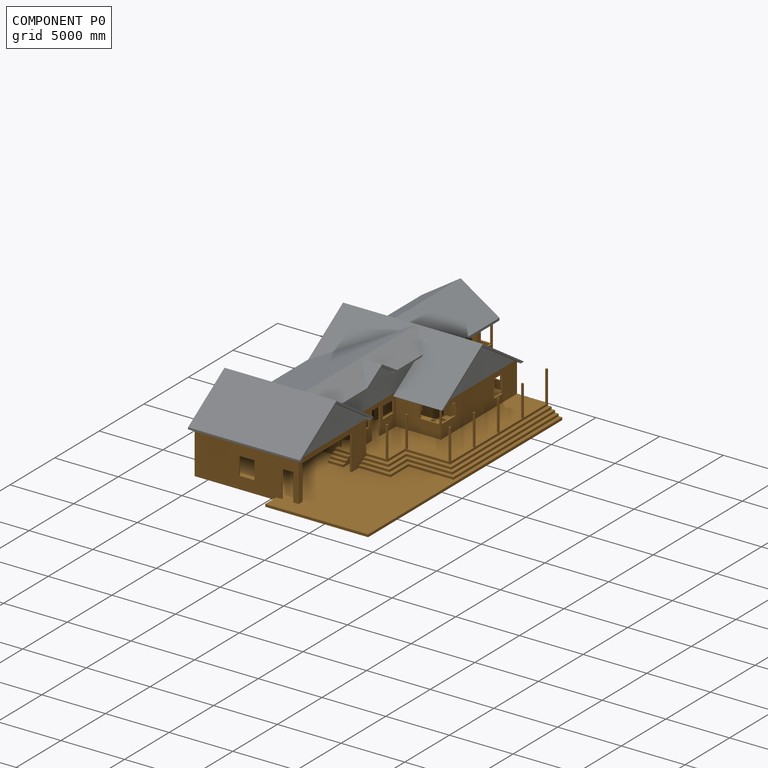
[diagram: component P0 — assembled]
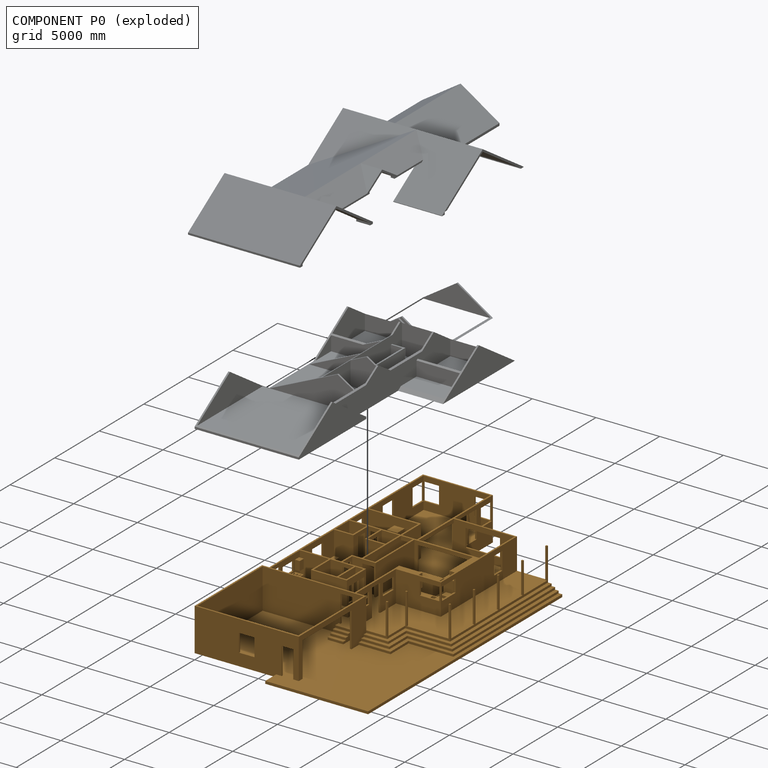
[diagram: component P0 — exploded]
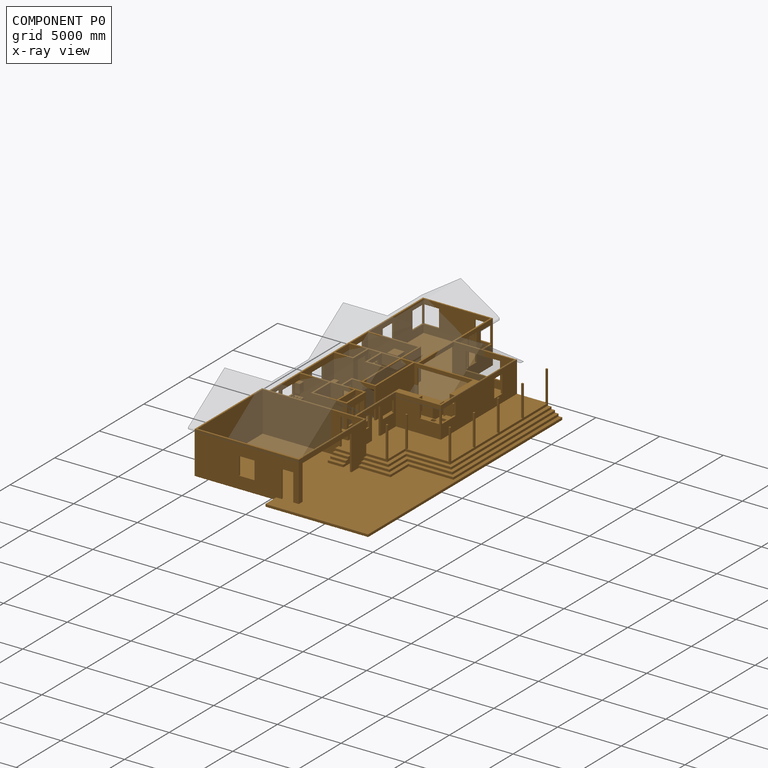
[diagram: component P0 — x-ray view]
COMPONENT P0 — geometry summary (no construction recipe available for this part):
  bounding box: 26035.0 x 15951.2 x 3352.8 mm
  B-rep topology: 1 solid, 450 faces, 2676 edges
  volume: 252859782148 mm^3 (18% of its bounding box)
Held by: FASTENED mate "Fastened-Floor 2" to P2.
PROVENANCE & LICENSES
Assembly (occurrences, transforms, mates, per-part STEP geometry): AutoMate dataset, Zenodo record 7776208, CC0.
Construction recipes: CADFS (HuggingFace VladPyatov/CADFS, CC-BY-4.0, layered over the ABC dataset), FeatureScript reconstruction programs keyed by ABC model id.
Join: ABC meta listings map ABC model id -> Onshape documentId; within a shared document, parts are matched by geometric signature (bounding-box dims + volume at 0.1% relative tolerance, exact B-rep face/solid counts).
Verification: 1 of this assembly's 3 components carries a recipe attachment, and every attachment is mesh-verified: the CADFS STEP and the AutoMate member STEP were compared as meshes in their shared local frame (symmetric sampled-point-to-mesh distance); worst across the 1 attachment: below the mesh-comparison resolution (tessellation chordal tolerance ~40.9 mm) on a 27240 mm part.
Renders: orthographic iso camera (az 35 / el 25); the floor grid conveys scale (grid pitch printed in each image; no ruler). In the exploded view each component is displaced by its stored offset vector: the offsets alone carry the explosion direction (mate normal/axis signs are not orientation cues and do not encode it), and separation distances are assigned per mate-chain, not proportionally to assembly-order depth.
